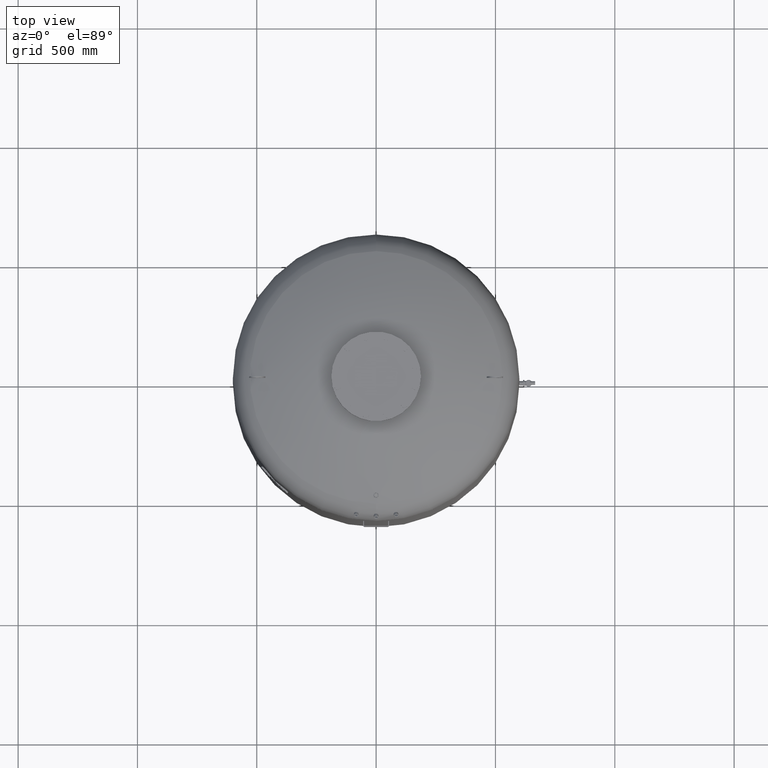
[diagram: clean part render]
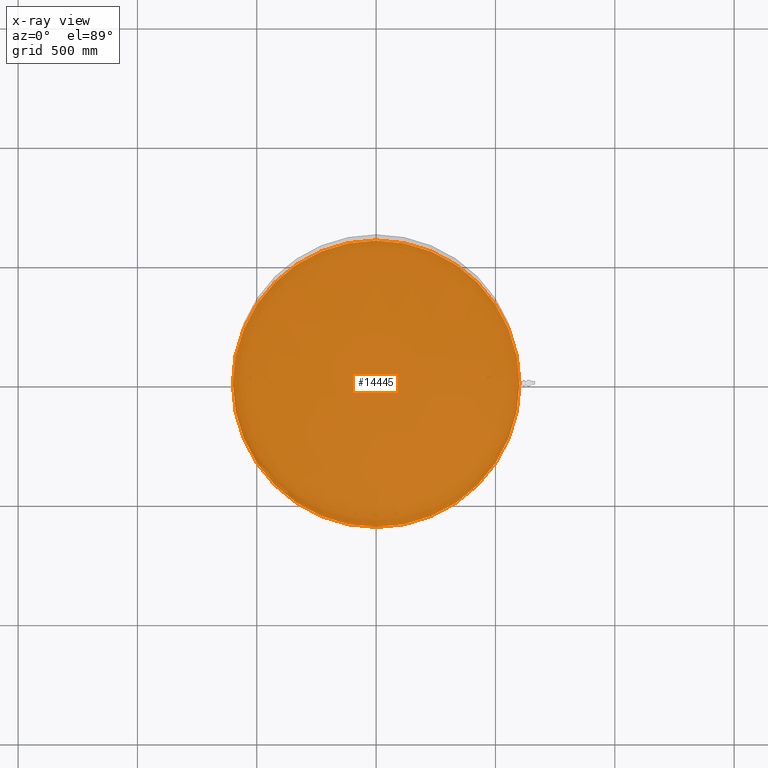
[diagram: x-ray — body ghosted, one internal face saturated and labeled with its STEP entity id]
A machine part, top view, then the same camera in x-ray: the body is ghosted and one INTERNAL B-rep face — a face not visible from any outside direction — is saturated and labeled: STEP entity #14445.
In plain terms, the highlighted planar face has unit normal (0, 0, 1).
Its self-contained STEP definition (entity closure, byte-faithful):
#14243=CARTESIAN_POINT('',(-600.000000000000110,-4.684274E-014,715.0));
#14244=VERTEX_POINT('',#14243);
#14253=CARTESIAN_POINT('',(599.999999999999890,2.663364E-014,715.000000000000110));
#14254=VERTEX_POINT('',#14253);
#14255=CARTESIAN_POINT('',(-3.836254E-014,-4.684274E-014,715.0));
#14256=DIRECTION('',(0.0,0.0,1.0));
#14257=DIRECTION('',(-1.0,0.0,0.0));
#14258=AXIS2_PLACEMENT_3D('',#14255,#14256,#14257);
#14259=CIRCLE('',#14258,600.0);
#14260=EDGE_CURVE('',#14254,#14244,#14259,.T.);
#14426=CARTESIAN_POINT('',(-3.836254E-014,-4.684274E-014,715.0));
#14427=DIRECTION('',(0.0,0.0,1.0));
#14428=DIRECTION('',(-1.0,0.0,0.0));
#14429=AXIS2_PLACEMENT_3D('',#14426,#14427,#14428);
#14430=CIRCLE('',#14429,600.0);
#14431=EDGE_CURVE('',#14244,#14254,#14430,.T.);
#14436=CARTESIAN_POINT('',(-300.000000000000060,-4.684274E-014,715.0));
#14437=DIRECTION('',(0.0,0.0,1.0));
#14438=DIRECTION('',(0.0,-1.0,0.0));
#14439=AXIS2_PLACEMENT_3D('',#14436,#14437,#14438);
#14440=PLANE('',#14439);
#14441=ORIENTED_EDGE('',*,*,#14431,.T.);
#14442=ORIENTED_EDGE('',*,*,#14260,.T.);
#14443=EDGE_LOOP('',(#14441,#14442));
#14444=FACE_OUTER_BOUND('',#14443,.T.);
#14445=ADVANCED_FACE('',(#14444),#14440,.T.);